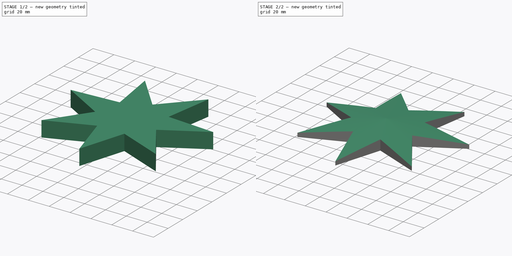
[diagram: build sequence overview — one tinted view per stage of 2, left to right]
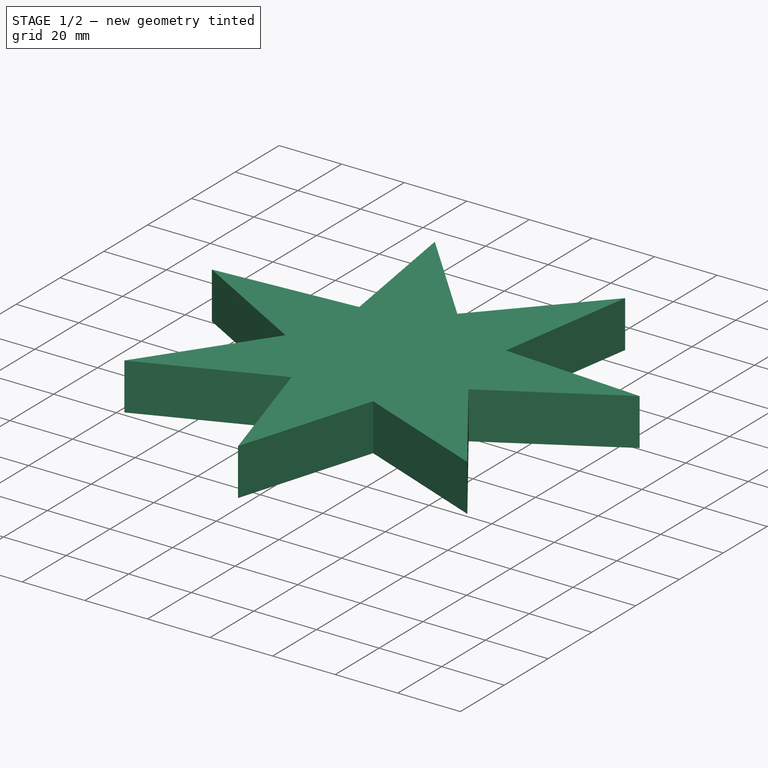
[diagram: stage 1 of 2 — iso view after this stage's code; geometry added in this stage tinted green]
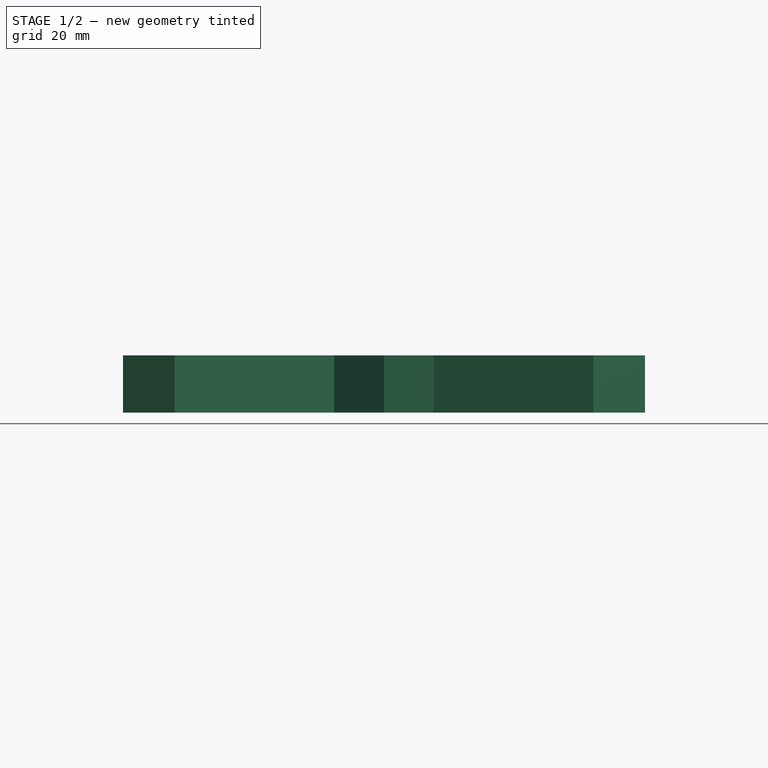
[diagram: stage 1 of 2 — front view after this stage's code; geometry added in this stage tinted green]
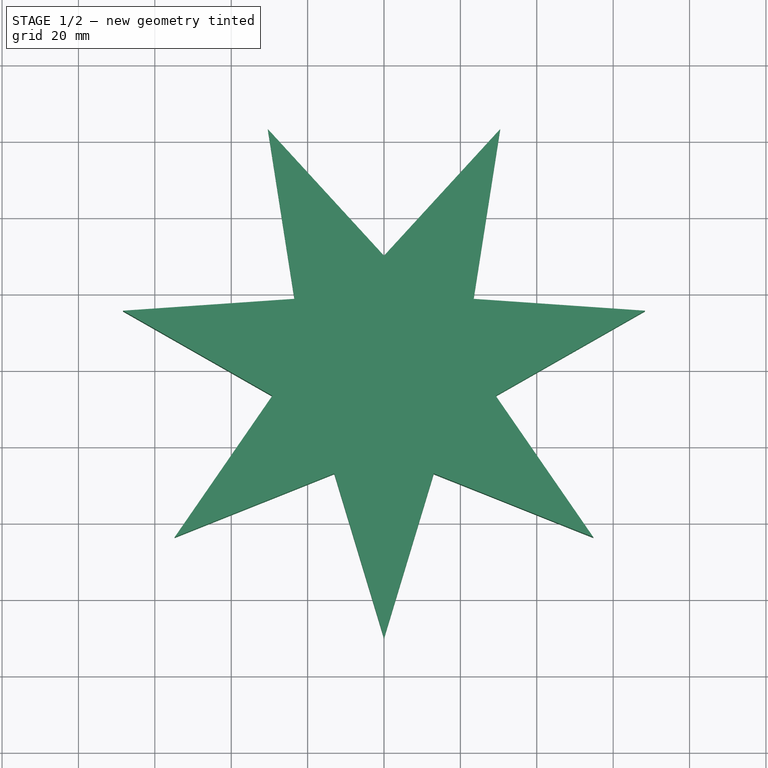
[diagram: stage 1 of 2 — top view after this stage's code; geometry added in this stage tinted green]
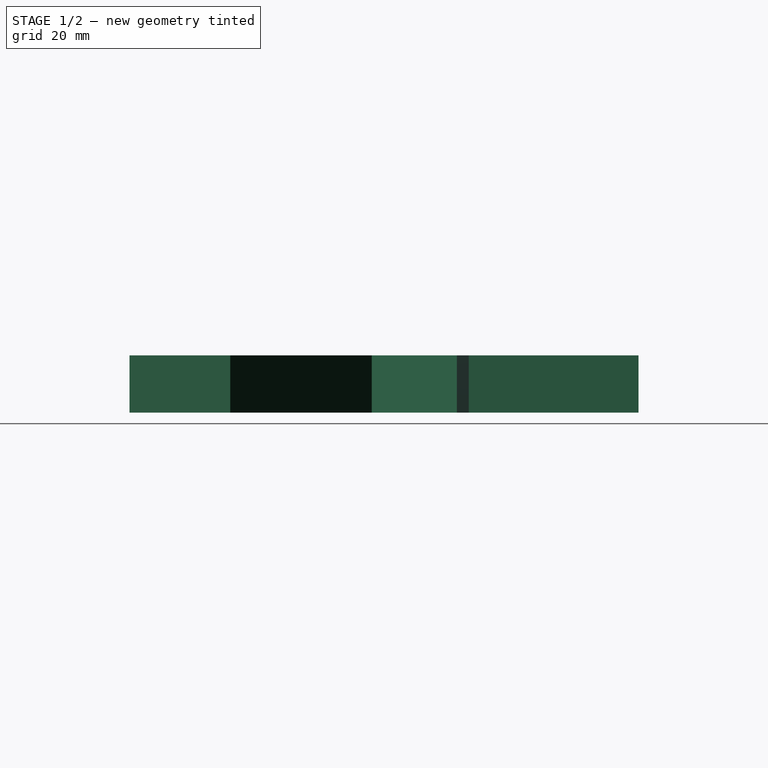
[diagram: stage 1 of 2 — right view after this stage's code; geometry added in this stage tinted green]
FCSTD DOCUMENT  (FreeCAD 0.18R16146 (Git))
Label: stern
License: All rights reserved
LicenseURL: http://en.wikipedia.org/wiki/All_rights_reserved
objects: Sketcher::SketchObject×2, PartDesign::Pad×1, PartDesign::Groove×1, PartDesign::Body×1
note: 7 computed .brp shape members not serialized (recipe doc carries the construction recipe); baked Part::Feature solids carry a one-line shape summary decoded from their .brp

FEATURE [Sketcher::SketchObject] Sketch
  MapMode = 5
  Support = -> [XY_Plane]
  sketch-geometry (22):
    g0: LineSegment [constr] StartX=23.4549 StartY=18.7047 StartZ=0 EndX=0 EndY=30 EndZ=0
    g1: LineSegment [constr] StartX=0 StartY=30 StartZ=0 EndX=-23.4549 EndY=18.7047 EndZ=0
    g2: LineSegment [constr] StartX=-23.4549 StartY=18.7047 StartZ=0 EndX=-29.2478 EndY=-6.67563 EndZ=0
    g3: LineSegment [constr] StartX=-29.2478 StartY=-6.67563 StartZ=0 EndX=-13.0165 EndY=-27.0291 EndZ=0
    g4: LineSegment [constr] StartX=-13.0165 StartY=-27.0291 StartZ=0 EndX=13.0165 EndY=-27.0291 EndZ=0
    g5: LineSegment [constr] StartX=13.0165 StartY=-27.0291 StartZ=0 EndX=29.2478 EndY=-6.67563 EndZ=0
    g6: LineSegment [constr] StartX=29.2478 StartY=-6.67563 StartZ=0 EndX=23.4549 EndY=18.7047 EndZ=0
    g7: Circle [constr] CenterX=0 CenterY=0 CenterZ=0 NormalX=0 NormalY=0 NormalZ=1 AngleXU=0 Radius=30
    g8: LineSegment StartX=0 StartY=30 StartZ=0 EndX=30.4176 EndY=63.1628 EndZ=0
    g9: LineSegment StartX=30.4176 StartY=63.1628 StartZ=0 EndX=23.4549 EndY=18.7047 EndZ=0
    g10: LineSegment StartX=23.4549 StartY=18.7047 StartZ=0 EndX=68.3477 EndY=15.5999 EndZ=0
    g11: LineSegment StartX=68.3477 StartY=15.5999 StartZ=0 EndX=29.2478 EndY=-6.67563 EndZ=0
    g12: LineSegment StartX=29.2478 StartY=-6.67563 StartZ=0 EndX=54.8106 EndY=-43.71 EndZ=0
    g13: LineSegment StartX=54.8106 StartY=-43.71 StartZ=0 EndX=13.0165 EndY=-27.0291 EndZ=0
    g14: LineSegment StartX=13.0165 StartY=-27.0291 StartZ=0 EndX=3.713e-13 EndY=-70.1054 EndZ=0
    g15: LineSegment StartX=3.713e-13 StartY=-70.1054 StartZ=0 EndX=-13.0165 EndY=-27.0291 EndZ=0
    g16: LineSegment StartX=-13.0165 StartY=-27.0291 StartZ=0 EndX=-54.8106 EndY=-43.71 EndZ=0
    g17: LineSegment StartX=-54.8106 StartY=-43.71 StartZ=0 EndX=-29.2478 EndY=-6.67563 EndZ=0
    g18: LineSegment StartX=-29.2478 StartY=-6.67563 StartZ=0 EndX=-68.3477 EndY=15.5999 EndZ=0
    g19: LineSegment StartX=-68.3477 StartY=15.5999 StartZ=0 EndX=-23.4549 EndY=18.7047 EndZ=0
    g20: LineSegment StartX=-23.4549 StartY=18.7047 StartZ=0 EndX=-30.4176 EndY=63.1628 EndZ=0
    g21: LineSegment StartX=-30.4176 StartY=63.1628 StartZ=0 EndX=0 EndY=30 EndZ=0
  constraints (53):
    c: Coincident(g0,g1)
    c: Coincident(g1,g2)
    c: Coincident(g2,g3)
    c: Coincident(g3,g4)
    c: Coincident(g4,g5)
    c: Coincident(g5,g6)
    c: Coincident(g6,g0)
    c: Equal(g0, g1-g6) x6
    c: PointOnObject(g0,g7)
    c: PointOnObject(g1,g7)
    c: PointOnObject(g2,g7)
    c: PointOnObject(g3,g7)
    c: PointOnObject(g4,g7)
    c: PointOnObject(g5,g7)
    c: PointOnObject(g6,g7)
    c: Coincident(g7,g-1)
    c: PointOnObject(g0,g-2)
    c: Radius(g7) = 30
    c: Coincident(g0,g8)
    c: Coincident(g8,g9)
    c: Coincident(g9,g0)
    c: Coincident(g9,g10)
    c: Coincident(g10,g11)
    c: Coincident(g11,g5)
    c: Coincident(g11,g12)
    c: Coincident(g12,g13)
    c: Coincident(g13,g4)
    c: Coincident(g13,g14)
    c: Coincident(g14,g15)
    c: Coincident(g15,g3)
    c: Coincident(g15,g16)
    c: Coincident(g16,g17)
    c: Coincident(g17,g2)
    c: Coincident(g17,g18)
    c: Coincident(g18,g19)
    c: Coincident(g19,g1)
    c: Coincident(g19,g20)
    c: Coincident(g20,g21)
    c: Coincident(g21,g8)
    c: Equal(g16,g17)
    c: Equal(g17,g18)
    c: Equal(g18,g19)
    c: Equal(g19,g20)
    c: Equal(g20,g21)
    c: Equal(g21,g8)
    c: Equal(g8,g9)
    c: Equal(g9,g10)
    c: Equal(g10,g11)
    c: Equal(g11,g12)
    c: Equal(g12,g13)
    c: Equal(g13,g14)
    c: Equal(g14,g15)
    c: Distance(g9) = 45
FEATURE [PartDesign::Pad] Pad
  Length = 15
  Length2 = 100
  Profile = -> Sketch
  Refine = true
  Type = 0
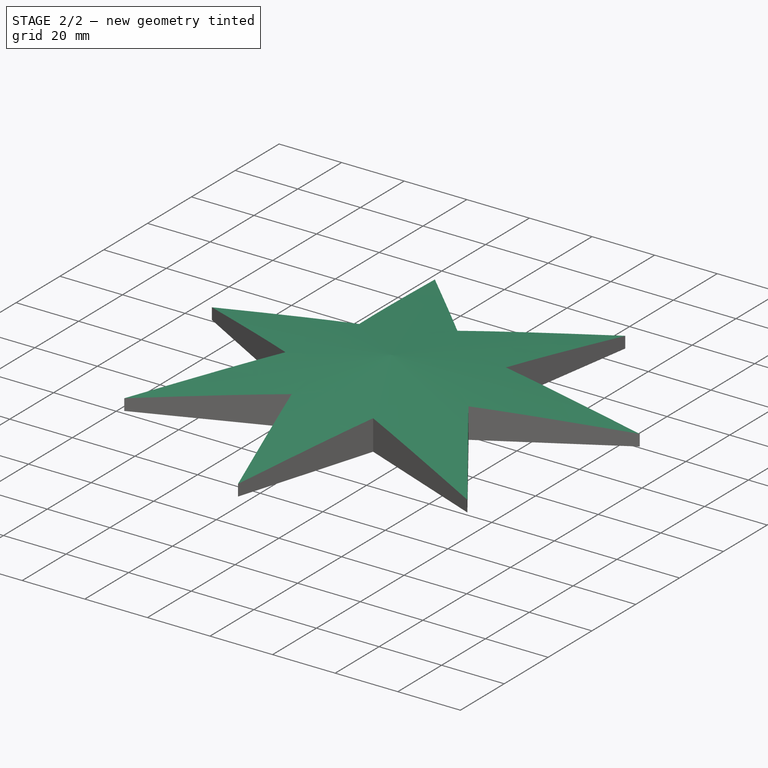
[diagram: stage 2 of 2 — iso view after this stage's code; geometry added in this stage tinted green]
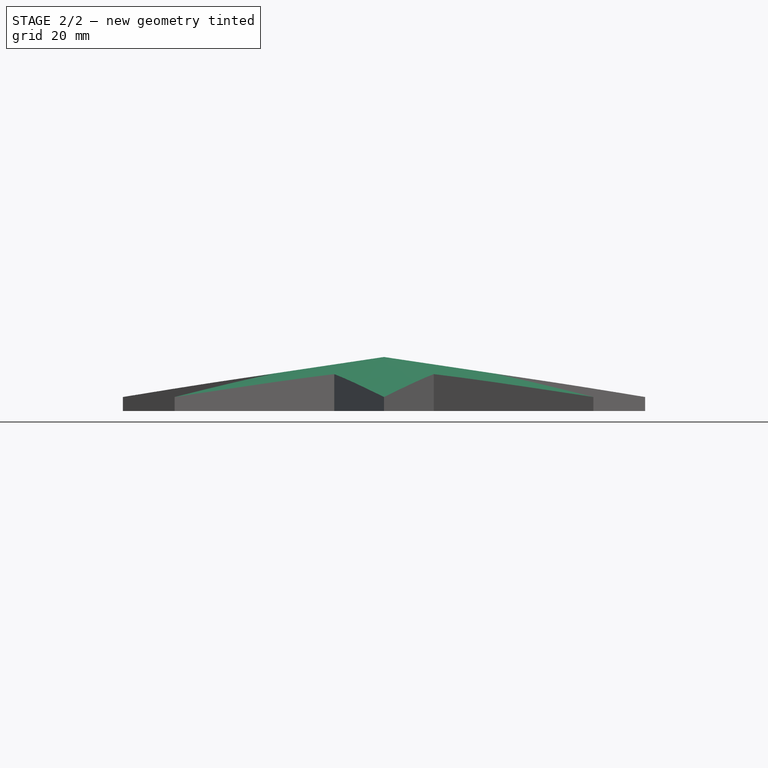
[diagram: stage 2 of 2 — front view after this stage's code; geometry added in this stage tinted green]
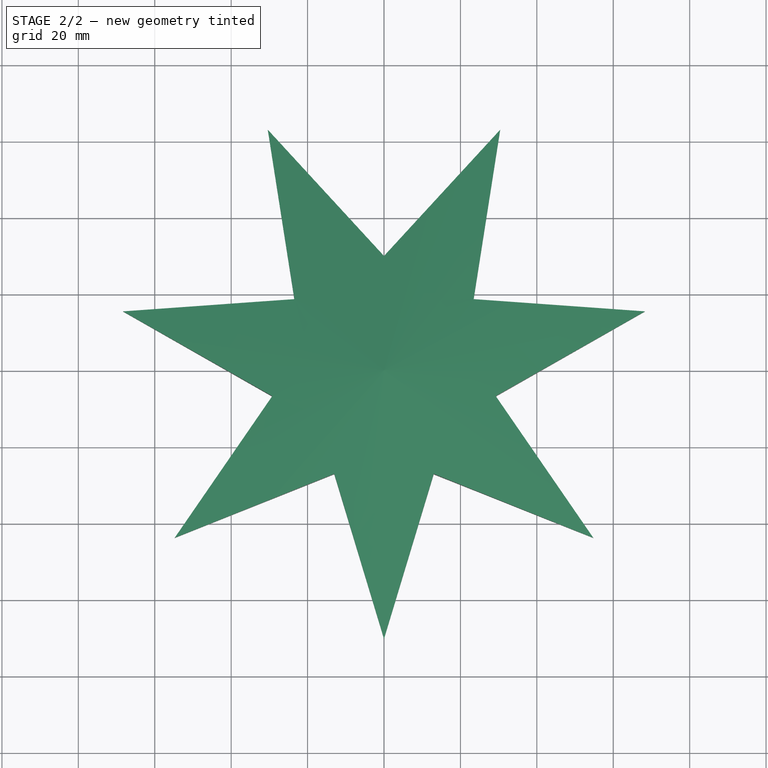
[diagram: stage 2 of 2 — top view after this stage's code; geometry added in this stage tinted green]
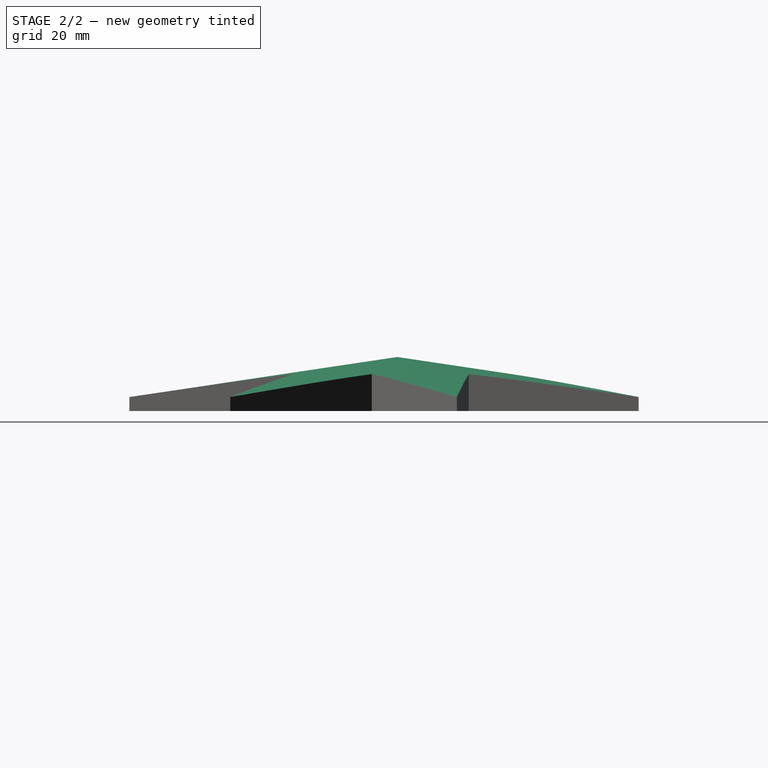
[diagram: stage 2 of 2 — right view after this stage's code; geometry added in this stage tinted green]
FEATURE [Sketcher::SketchObject] Sketch001
  MapMode = 5
  Placement = pos=(0,0,0) rot=(1,0,0;1.5708rad)
  Support = -> [XZ_Plane]
  sketch-geometry (4):
    g0: LineSegment StartX=0 StartY=90.4734 StartZ=0 EndX=0 EndY=14.1382 EndZ=0
    g1: LineSegment StartX=0 StartY=14.1382 StartZ=0 EndX=80.8858 EndY=2.05274 EndZ=0
    g2: LineSegment StartX=80.8858 StartY=2.05274 StartZ=0 EndX=80.8858 EndY=90.4734 EndZ=0
    g3: LineSegment StartX=80.8858 StartY=90.4734 StartZ=0 EndX=0 EndY=90.4734 EndZ=0
  constraints (8):
    c: Vertical(g0)
    c: Coincident(g0,g1)
    c: Coincident(g1,g2)
    c: Vertical(g2)
    c: Coincident(g2,g3)
    c: Coincident(g3,g0)
    c: Horizontal(g3)
    c: PointOnObject(g0,g-2)
FEATURE [PartDesign::Groove] Groove
  Angle = 360
  Axis = (-3e-16,3e-16,1)
  Base = (0,0,0)
  BaseFeature = -> Pad
  Profile = -> Sketch001
  ReferenceAxis = -> Z_Axis
  Refine = true
FEATURE [PartDesign::Body] Body
  Group = -> [Sketch,Pad,Sketch001,Groove]
  Origin = -> Origin
  Tip = -> Groove
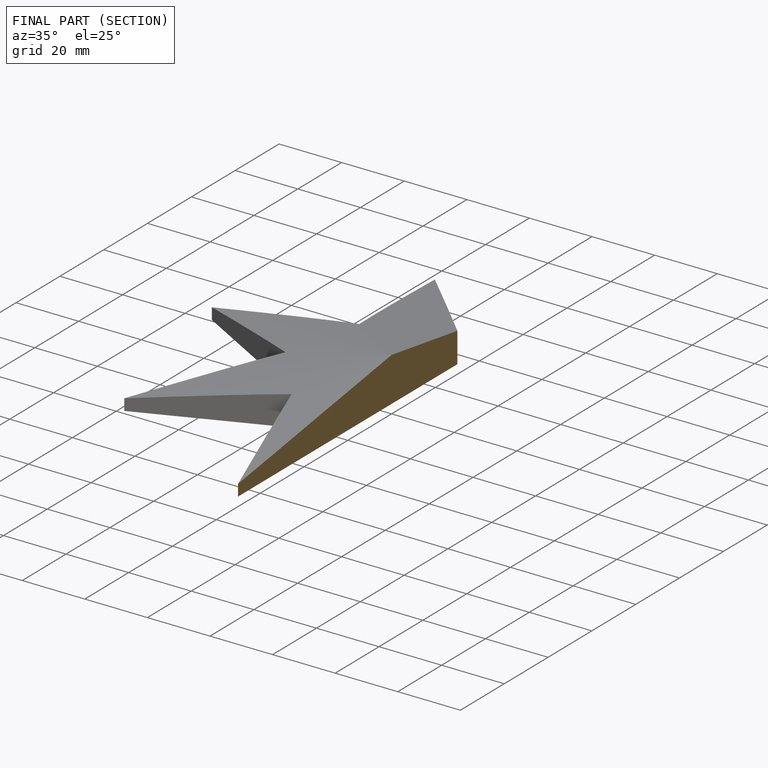
[diagram: finished part — half-section view (interior)]
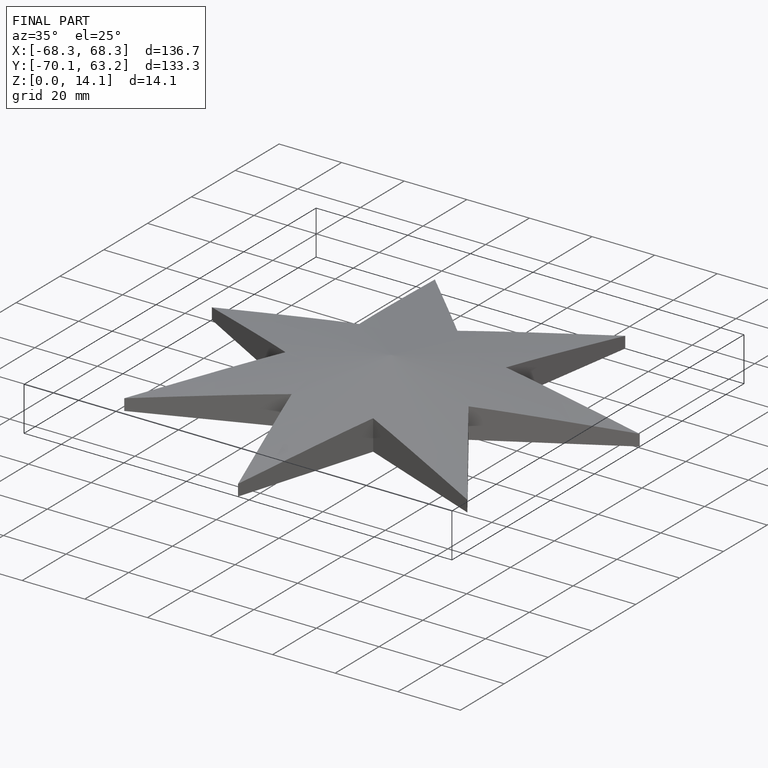
[diagram: finished part — iso view with bounding-box wireframe]
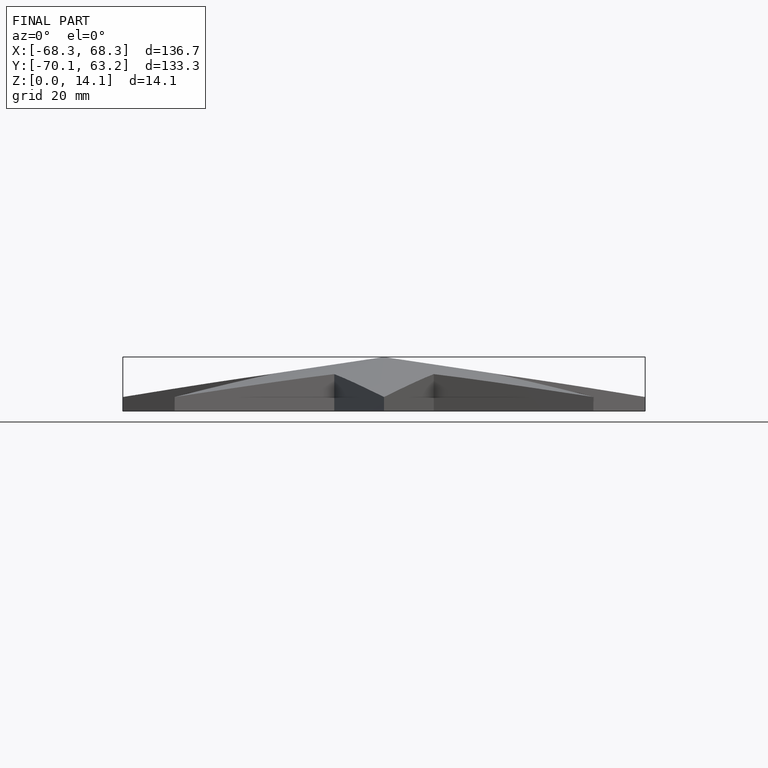
[diagram: finished part — front view with bounding-box wireframe]
